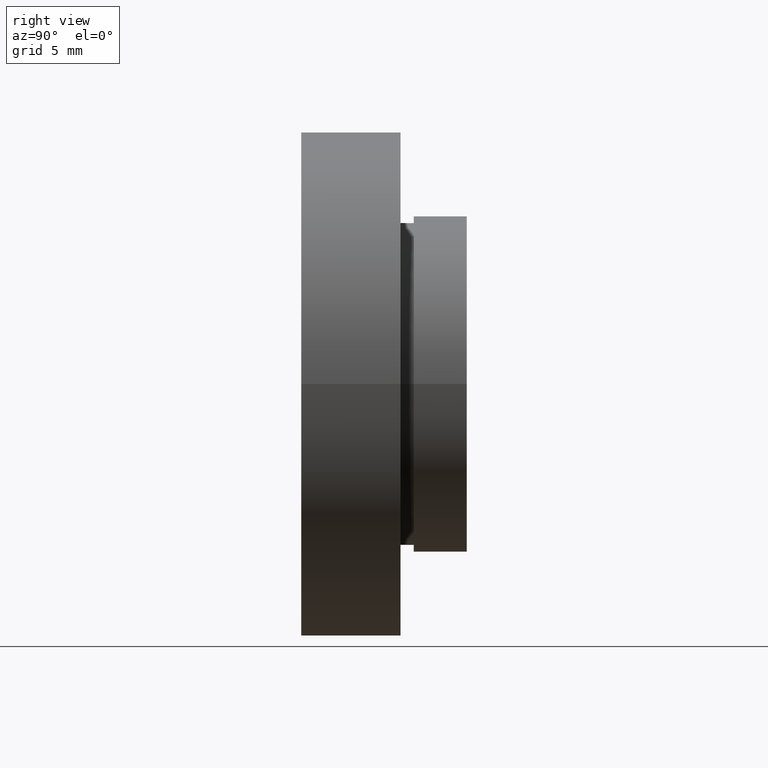
[diagram: clean part render]
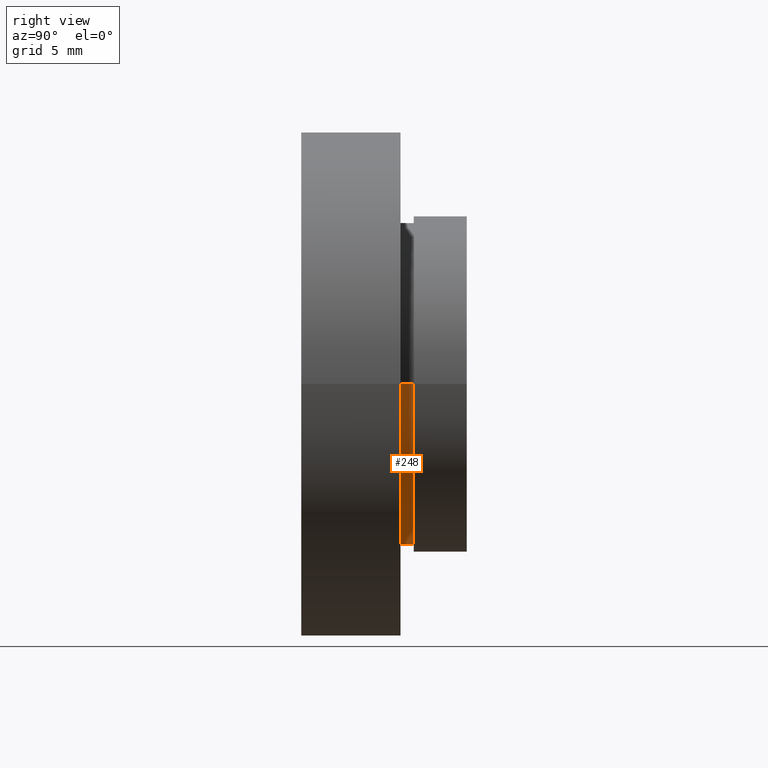
[diagram: same view with one face highlighted and labeled with its STEP entity id]
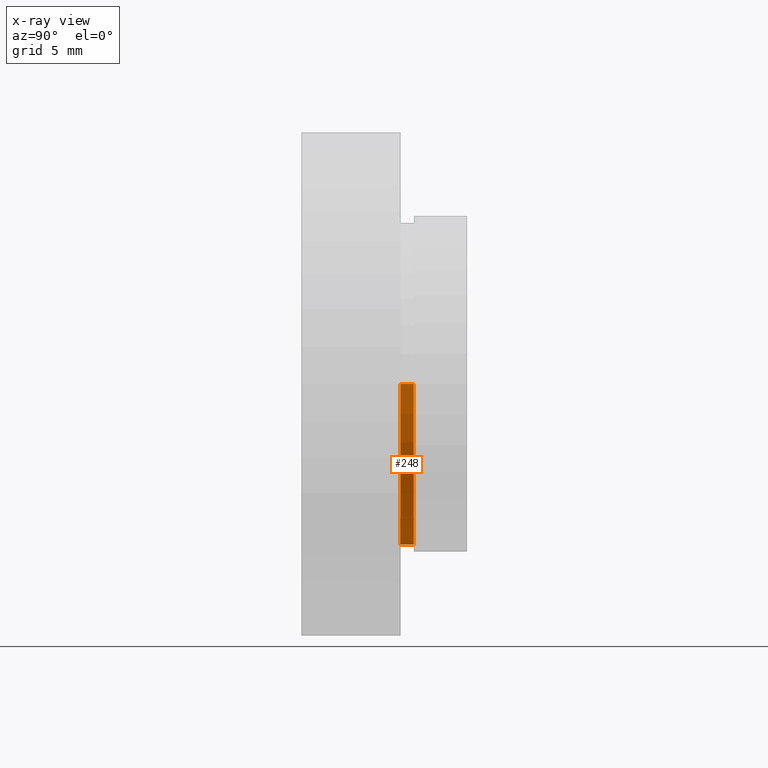
[diagram: x-ray of the same camera — body ghosted, the highlighted face saturated]
A machine part, right view. The second image highlights one B-rep face of the part: STEP entity #248.
The next image is the same camera in x-ray: the body ghosted, the highlighted face saturated — about 0% of this face is hidden behind the body in this view.
In plain terms, the highlighted cylindrical surface (partial cylindrical patch) has radius 12.2 mm, axis along (-0, 1, -0).
Its self-contained STEP definition (entity closure, byte-faithful):
#2 = CARTESIAN_POINT ( 'NONE',  ( 12.19999999999999900, 16.88601823708207700, 1.494069094959770900E-015 ) ) ;
#19 = LINE ( 'NONE', #2, #588 ) ;
#20 = CARTESIAN_POINT ( 'NONE',  ( 12.20000000000000100, 7.500000000000000000, 1.494069094959770900E-015 ) ) ;
#22 = DIRECTION ( 'NONE',  ( -1.224646799147351000E-016, 1.000000000000000000, -0.0000000000000000000 ) ) ;
#71 = VERTEX_POINT ( 'NONE', #576 ) ;
#96 = EDGE_CURVE ( 'NONE', #181, #163, #19, .T. ) ;
#127 = ORIENTED_EDGE ( 'NONE', *, *, #234, .T. ) ;
#139 = EDGE_LOOP ( 'NONE', ( #442, #127, #622, #355 ) ) ;
#163 = VERTEX_POINT ( 'NONE', #270 ) ;
#168 = VECTOR ( 'NONE', #392, 1000.000000000000000 ) ;
#171 = CARTESIAN_POINT ( 'NONE',  ( 0.0000000000000000000, 16.88601823708207700, 0.0000000000000000000 ) ) ;
#181 = VERTEX_POINT ( 'NONE', #20 ) ;
#234 = EDGE_CURVE ( 'NONE', #181, #71, #444, .T. ) ;
#248 = ADVANCED_FACE ( 'NONE', ( #491 ), #584, .T. ) ;
#270 = CARTESIAN_POINT ( 'NONE',  ( 12.20000000000000100, 8.500000000000000000, 1.494069094959770900E-015 ) ) ;
#279 = EDGE_CURVE ( 'NONE', #163, #394, #481, .T. ) ;
#282 = LINE ( 'NONE', #529, #168 ) ;
#310 = CARTESIAN_POINT ( 'NONE',  ( 1.026991039163387700E-015, 8.499999999999998200, 0.0000000000000000000 ) ) ;
#315 = AXIS2_PLACEMENT_3D ( 'NONE', #451, #593, #396 ) ;
#325 = EDGE_CURVE ( 'NONE', #71, #394, #282, .T. ) ;
#345 = DIRECTION ( 'NONE',  ( -1.224646799147351000E-016, 1.000000000000000000, -0.0000000000000000000 ) ) ;
#355 = ORIENTED_EDGE ( 'NONE', *, *, #279, .F. ) ;
#392 = DIRECTION ( 'NONE',  ( -1.224646799147351000E-016, 1.000000000000000000, -0.0000000000000000000 ) ) ;
#394 = VERTEX_POINT ( 'NONE', #457 ) ;
#396 = DIRECTION ( 'NONE',  ( -1.000000000000000000, -1.421904488505579700E-016, 0.0000000000000000000 ) ) ;
#442 = ORIENTED_EDGE ( 'NONE', *, *, #96, .F. ) ;
#444 = CIRCLE ( 'NONE', #315, 12.19999999999999900 ) ;
#451 = CARTESIAN_POINT ( 'NONE',  ( 1.149455719078122700E-015, 7.499999999999998200, 0.0000000000000000000 ) ) ;
#457 = CARTESIAN_POINT ( 'NONE',  ( -12.19999999999999800, 8.499999999999996400, 0.0000000000000000000 ) ) ;
#481 = CIRCLE ( 'NONE', #486, 12.19999999999999900 ) ;
#486 = AXIS2_PLACEMENT_3D ( 'NONE', #310, #22, #549 ) ;
#491 = FACE_OUTER_BOUND ( 'NONE', #139, .T. ) ;
#529 = CARTESIAN_POINT ( 'NONE',  ( -12.19999999999999900, 16.88601823708207700, 0.0000000000000000000 ) ) ;
#532 = DIRECTION ( 'NONE',  ( -1.000000000000000000, 0.0000000000000000000, 0.0000000000000000000 ) ) ;
#543 = DIRECTION ( 'NONE',  ( -1.224646799147351000E-016, 1.000000000000000000, -0.0000000000000000000 ) ) ;
#549 = DIRECTION ( 'NONE',  ( -1.000000000000000000, -1.421904488505579700E-016, 0.0000000000000000000 ) ) ;
#569 = AXIS2_PLACEMENT_3D ( 'NONE', #171, #543, #532 ) ;
#576 = CARTESIAN_POINT ( 'NONE',  ( -12.19999999999999800, 7.499999999999996400, 0.0000000000000000000 ) ) ;
#584 = CYLINDRICAL_SURFACE ( 'NONE', #569, 12.19999999999999900 ) ;
#588 = VECTOR ( 'NONE', #345, 1000.000000000000000 ) ;
#593 = DIRECTION ( 'NONE',  ( -1.224646799147351000E-016, 1.000000000000000000, -0.0000000000000000000 ) ) ;
#622 = ORIENTED_EDGE ( 'NONE', *, *, #325, .T. ) ;